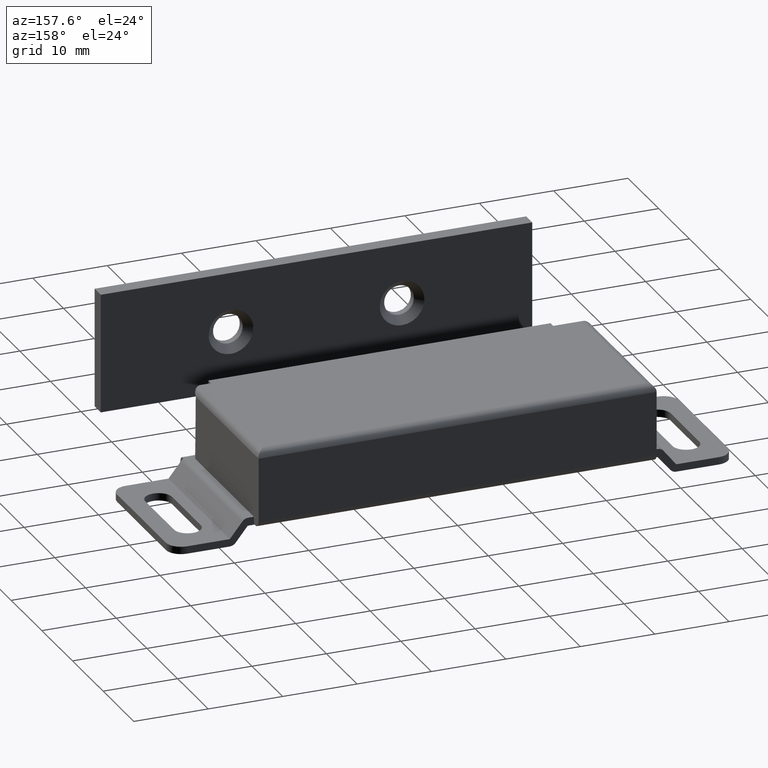
[diagram: clean part render]
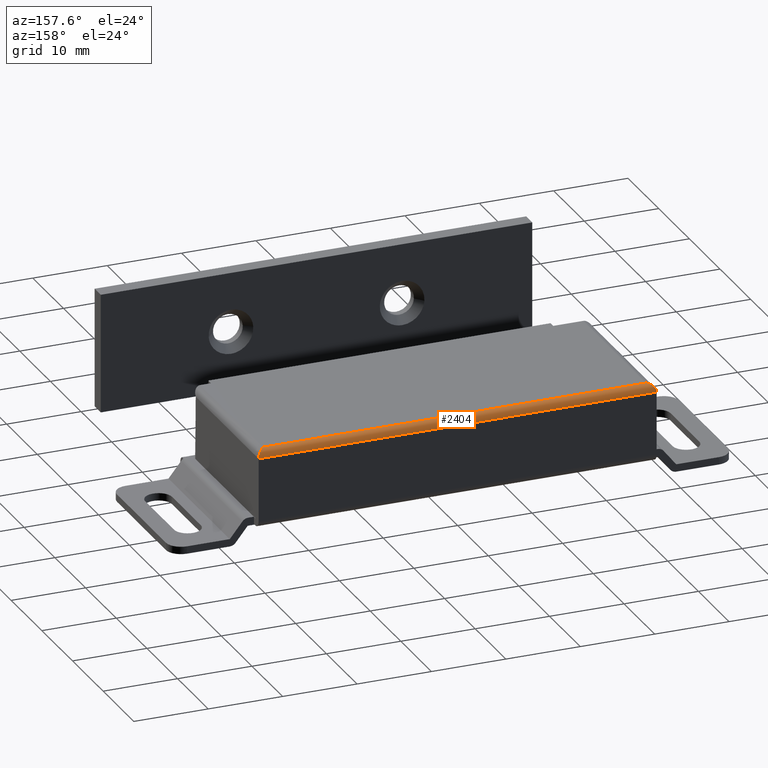
[diagram: same view with one face highlighted and labeled with its STEP entity id]
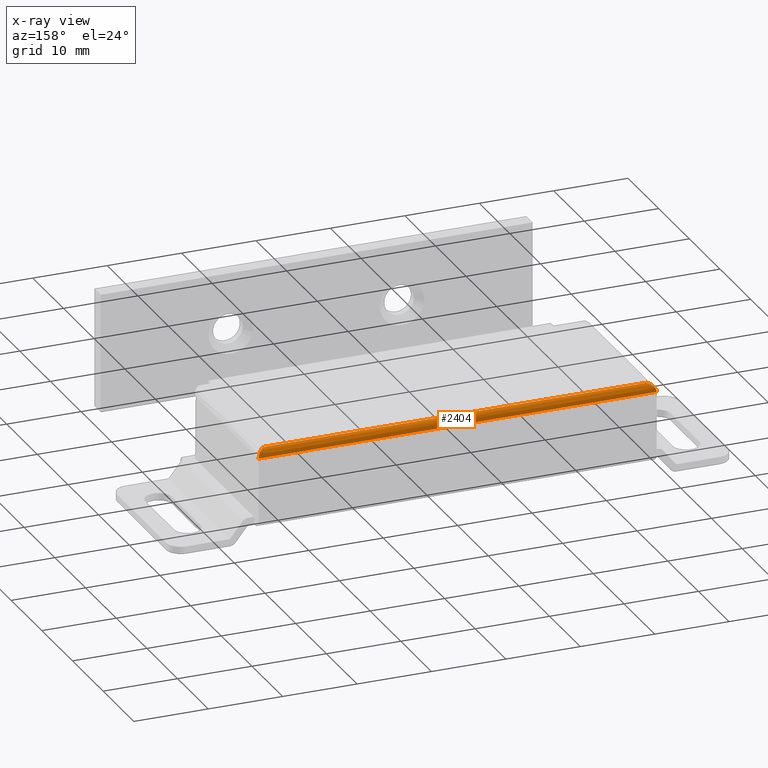
[diagram: x-ray of the same camera — body ghosted, the highlighted face saturated]
A machine part, auxiliary view. The second image highlights one B-rep face of the part: STEP entity #2404.
The next image is the same camera in x-ray: the body ghosted, the highlighted face saturated — about 0% of this face is hidden behind the body in this view.
In plain terms, the highlighted face is a freeform B-spline surface patch.
Its self-contained STEP definition (entity closure, byte-faithful):
#1413=CARTESIAN_POINT('',(-25.750004000000001,-1.0,12.999983999999980));
#1414=VERTEX_POINT('',#1413);
#1420=CARTESIAN_POINT('',(-26.750004000000001,3.469447E-015,11.999984000000000));
#1421=VERTEX_POINT('',#1420);
#1422=CARTESIAN_POINT('',(-26.750004000000001,-6.505213E-016,11.999984000000000));
#1423=CARTESIAN_POINT('',(-26.750004000000004,-6.505213E-016,12.999983999999998));
#1424=CARTESIAN_POINT('',(-25.750004000000001,-1.000000000000000,12.999984000000000));
#1432=(BOUNDED_CURVE()B_SPLINE_CURVE(2,(#1422,#1423,#1424),.UNSPECIFIED.,.F.,.U.)CURVE()GEOMETRIC_REPRESENTATION_ITEM()QUASI_UNIFORM_CURVE()RATIONAL_B_SPLINE_CURVE((1.0,0.707106781186548,1.0))REPRESENTATION_ITEM(''));
#1433=EDGE_CURVE('',#1421,#1414,#1432,.T.);
#1501=CARTESIAN_POINT('',(26.750004000000001,3.469447E-015,11.999984000000000));
#1502=VERTEX_POINT('',#1501);
#2288=CARTESIAN_POINT('',(25.750004000000001,-1.0,12.999983999999980));
#2289=VERTEX_POINT('',#2288);
#2290=CARTESIAN_POINT('',(25.750004000000001,-1.0,12.999983999999980));
#2291=CARTESIAN_POINT('',(26.750004000000008,-6.505213E-016,12.999983800079963));
#2292=CARTESIAN_POINT('',(26.750004000000001,-6.505213E-016,11.999984000000000));
#2300=(BOUNDED_CURVE()B_SPLINE_CURVE(2,(#2290,#2291,#2292),.UNSPECIFIED.,.F.,.U.)CURVE()GEOMETRIC_REPRESENTATION_ITEM()QUASI_UNIFORM_CURVE()RATIONAL_B_SPLINE_CURVE((1.0,0.707106851868958,1.0))REPRESENTATION_ITEM(''));
#2301=EDGE_CURVE('',#2289,#1502,#2300,.T.);
#2355=CARTESIAN_POINT('',(25.750004000000001,-1.0,12.999983999999980));
#2356=CARTESIAN_POINT('',(-25.750004000000001,-1.0,12.999983999999980));
#2357=QUASI_UNIFORM_CURVE('',1,(#2355,#2356),.UNSPECIFIED.,.F.,.U.);
#2358=EDGE_CURVE('',#2289,#1414,#2357,.T.);
#2380=CARTESIAN_POINT('',(-28.087504200000001,-1.008726535498373,12.999945923064169));
#2381=CARTESIAN_POINT('',(28.120941705000000,-1.008726535498373,12.999945923064169));
#2382=CARTESIAN_POINT('',(-28.087504200000005,0.063601342011752,13.009303986679544));
#2383=CARTESIAN_POINT('',(28.120941705000000,0.063601342011752,13.009303986679544));
#2384=CARTESIAN_POINT('',(-28.087504200000001,-0.001865201578134,11.938935460465141));
#2385=CARTESIAN_POINT('',(28.120941705000000,-0.001865201578134,11.938935460465141));
#2393=(BOUNDED_SURFACE()B_SPLINE_SURFACE(1,2,((#2380,#2382,#2384),(#2381,#2383,#2385)),.UNSPECIFIED.,.F.,.F.,.U.)B_SPLINE_SURFACE_WITH_KNOTS((2,2),(3,3),(0.0,56.208445905000012),(0.0,1.0),.UNSPECIFIED.)GEOMETRIC_REPRESENTATION_ITEM()RATIONAL_B_SPLINE_SURFACE(((1.0,0.681998360062499,1.0),(1.0,0.681998360062499,1.0)))REPRESENTATION_ITEM('')SURFACE());
#2394=ORIENTED_EDGE('',*,*,#2358,.F.);
#2395=ORIENTED_EDGE('',*,*,#2301,.T.);
#2396=CARTESIAN_POINT('',(-26.750004000000001,3.469447E-015,11.999984000000000));
#2397=CARTESIAN_POINT('',(26.750004000000001,3.469447E-015,11.999984000000000));
#2398=QUASI_UNIFORM_CURVE('',1,(#2396,#2397),.UNSPECIFIED.,.F.,.U.);
#2399=EDGE_CURVE('',#1421,#1502,#2398,.T.);
#2400=ORIENTED_EDGE('',*,*,#2399,.F.);
#2401=ORIENTED_EDGE('',*,*,#1433,.T.);
#2402=EDGE_LOOP('',(#2394,#2395,#2400,#2401));
#2403=FACE_OUTER_BOUND('',#2402,.T.);
#2404=ADVANCED_FACE('',(#2403),#2393,.T.);